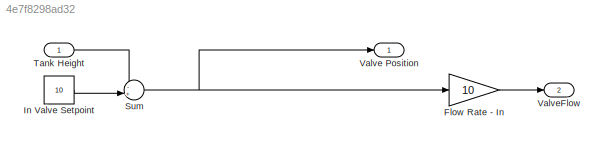
MODEL slx_4e7f8298ad32
KIND model
CONFIG AbsTol = auto
CONFIG EnableMultiTasking = off
CONFIG FixedStep = auto
CONFIG MaxStep = auto
CONFIG MinStep = auto
CONFIG RelTol = 1e-3
CONFIG SampleTimeConstraint = Unconstrained
CONFIG SolverName = VariableStepAuto
CONFIG StartTime = 0.0
CONFIG StopTime = 10.0
BLOCK [Gain] Flow Rate - In
  Gain = 10
  NameLocation = top
  OutDataTypeStr = Inherit: Inherit via back propagation
  ParamDataTypeStr = Inherit: Same as input
  SaturateOnIntegerOverflow = on
BLOCK [Constant] In Valve Setpoint
  Value = 10
BLOCK [Sum] Sum
  Inputs = -+|
BLOCK [Inport] Tank Height
BLOCK [Outport] Valve Position
  InitialOutput = 0
  VectorParamsAs1DForOutWhenUnconnected = off
BLOCK [Outport] ValveFlow
  InitialOutput = 0
  Port = 2
  VectorParamsAs1DForOutWhenUnconnected = off
LINE Flow Rate - In:1 -> ValveFlow:1
LINE In Valve Setpoint:1 -> Sum:2
NET Sum:1 -> Flow Rate - In:1, Valve Position:1
LINE Tank Height:1 -> Sum:1
note: NET lines group one-source signal fan-out (src -> all destinations, sorted); 1:1 wires keep LINE
